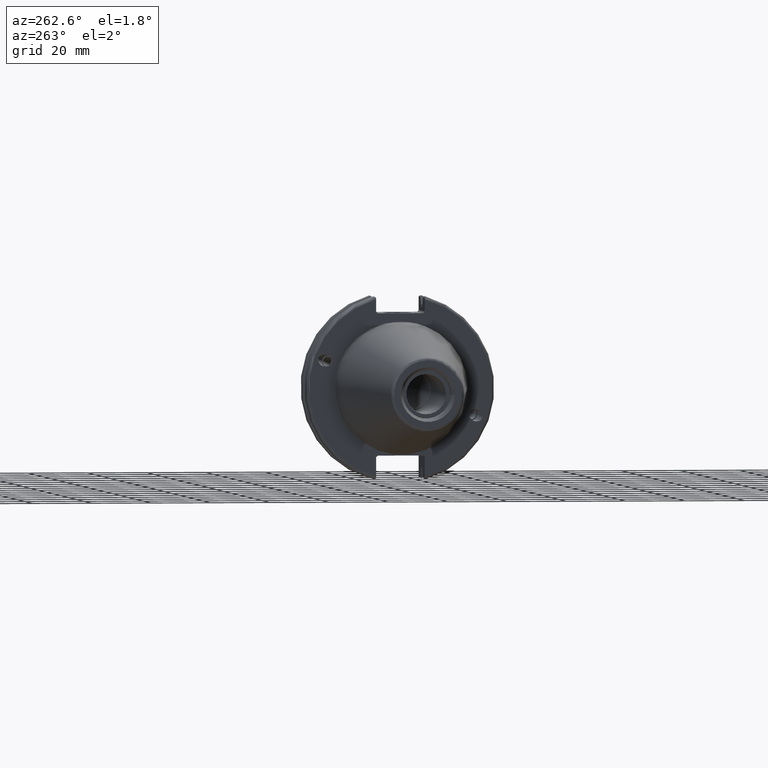
[diagram: clean part render]
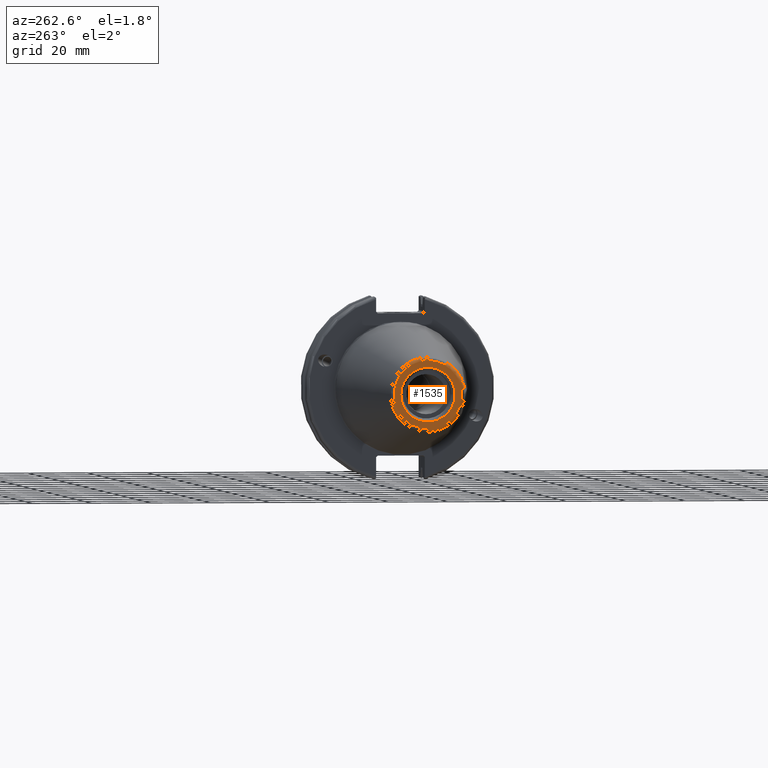
[diagram: same view with one face highlighted and labeled with its STEP entity id]
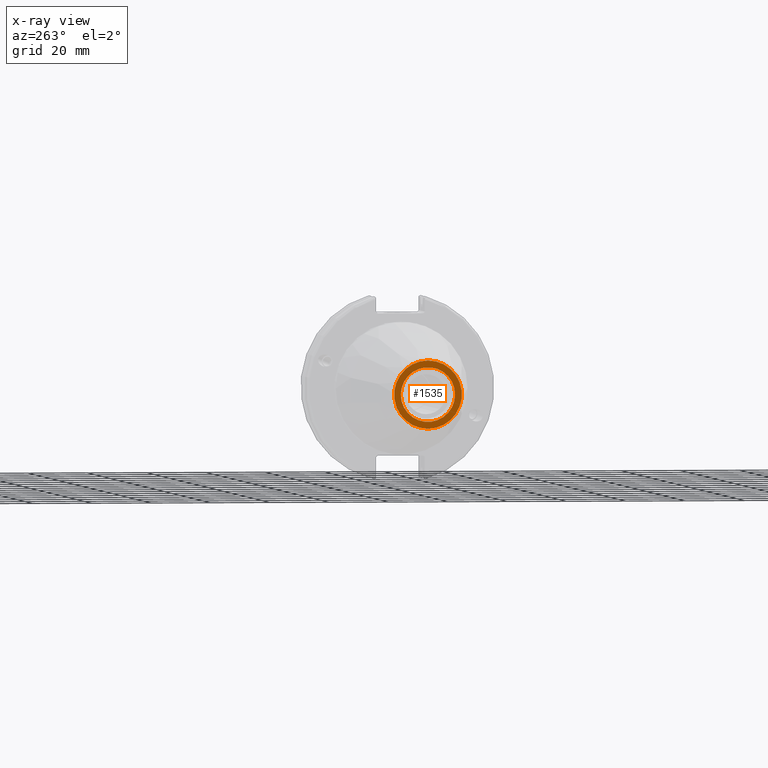
[diagram: x-ray of the same camera — body ghosted, the highlighted face saturated]
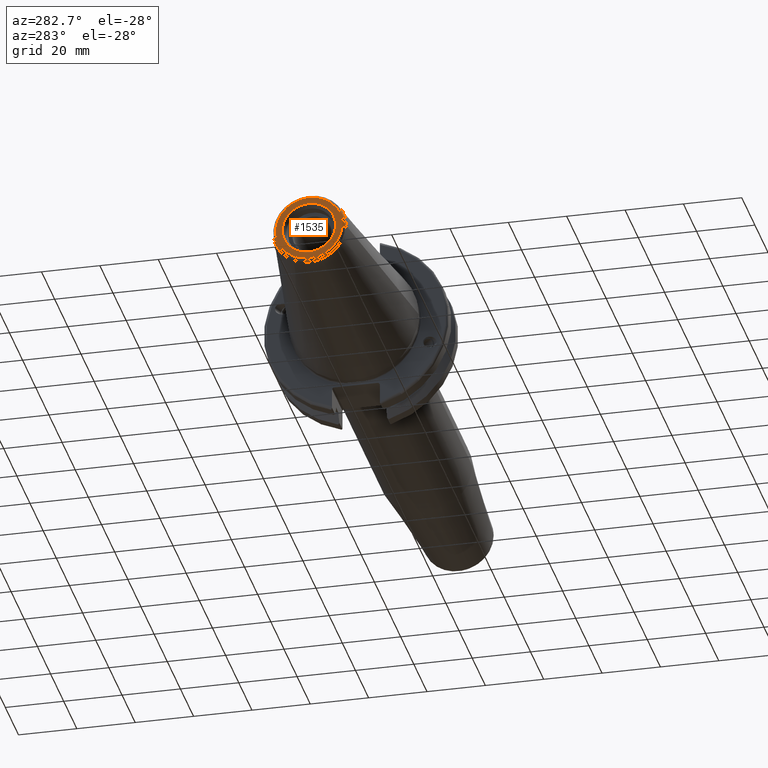
[diagram: same view with one face highlighted and labeled with its STEP entity id]
A machine part, auxiliary view. The second image highlights one B-rep face of the part: STEP entity #1535.
The next image is the same camera in x-ray: the body ghosted, the highlighted face saturated — about 0% of this face is hidden behind the body in this view.
A second angle (auxiliary view) of the same face is appended — the face is thin or edge-on in the first view.
In plain terms, the highlighted planar face has unit normal (-1, 0, 0).
Its self-contained STEP definition (entity closure, byte-faithful):
#121=FACE_BOUND('',#520,.T.);
#144=PLANE('',#1723);
#419=FACE_OUTER_BOUND('',#519,.T.);
#519=EDGE_LOOP('',(#1336));
#520=EDGE_LOOP('',(#1337));
#611=CIRCLE('',#1722,11.4071305970304);
#612=CIRCLE('',#1724,9.15);
#764=VERTEX_POINT('',#2909);
#765=VERTEX_POINT('',#2913);
#972=EDGE_CURVE('',#764,#764,#611,.T.);
#973=EDGE_CURVE('',#765,#765,#612,.T.);
#1336=ORIENTED_EDGE('',*,*,#972,.F.);
#1337=ORIENTED_EDGE('',*,*,#973,.T.);
#1535=ADVANCED_FACE('',(#419,#121),#144,.T.);
#1722=AXIS2_PLACEMENT_3D('',#2911,#2110,#2111);
#1723=AXIS2_PLACEMENT_3D('',#2912,#2112,#2113);
#1724=AXIS2_PLACEMENT_3D('',#2914,#2114,#2115);
#2110=DIRECTION('center_axis',(1.,0.,0.));
#2111=DIRECTION('ref_axis',(0.,-1.,1.83697019872103E-16));
#2112=DIRECTION('center_axis',(-1.,0.,0.));
#2113=DIRECTION('ref_axis',(0.,0.,1.));
#2114=DIRECTION('center_axis',(1.,0.,0.));
#2115=DIRECTION('ref_axis',(0.,0.,-1.));
#2909=CARTESIAN_POINT('',(-68.25,-1.39697059731091E-15,11.4071305970304));
#2911=CARTESIAN_POINT('Origin',(-68.25,0.,0.));
#2912=CARTESIAN_POINT('Origin',(-68.25,12.271875,0.));
#2913=CARTESIAN_POINT('',(-68.25,-9.15,-1.12055182121983E-15));
#2914=CARTESIAN_POINT('Origin',(-68.25,0.,0.));